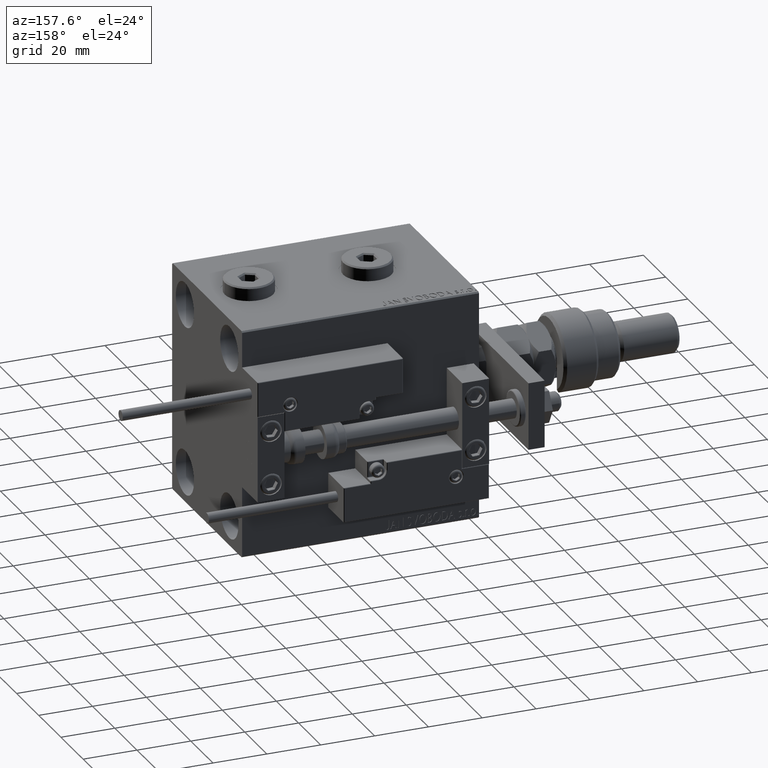
[diagram: clean part render]
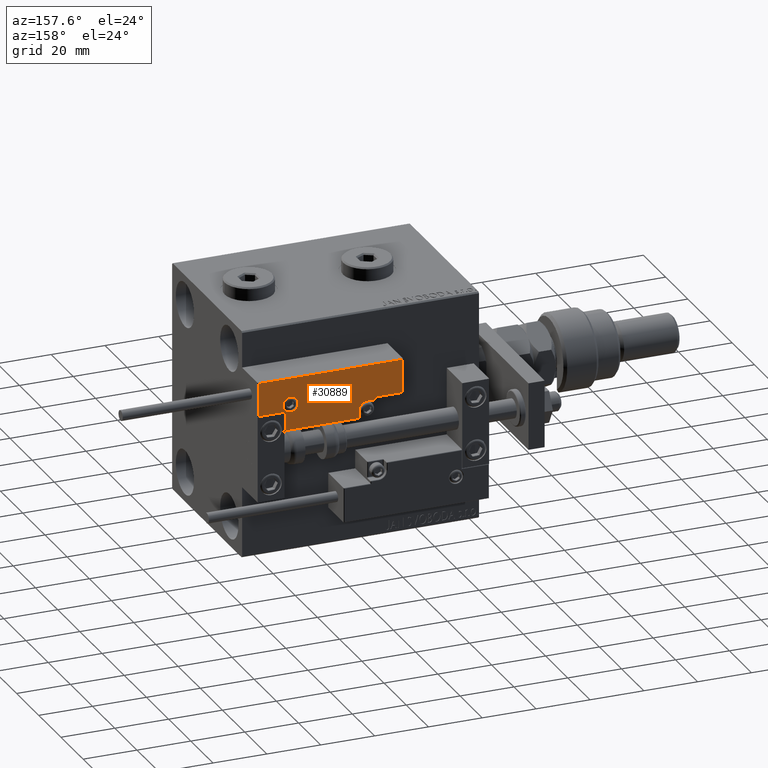
[diagram: same view with one face highlighted and labeled with its STEP entity id]
A machine part, auxiliary view. The second image highlights one B-rep face of the part: STEP entity #30889.
In plain terms, the highlighted planar face has unit normal (0, 1, -0).
Its self-contained STEP definition (entity closure, byte-faithful):
#212 = EDGE_LOOP ( 'NONE', ( #49773, #41103, #31280, #18700, #43992, #34034, #53513, #29440, #35513, #48878, #25969 ) ) ;
#790 = AXIS2_PLACEMENT_3D ( 'NONE', #13364, #30132, #46885 ) ;
#1714 = EDGE_CURVE ( 'NONE', #29962, #48337, #37411, .T. ) ;
#3985 = DIRECTION ( 'NONE',  ( -8.006416042969869188E-16, -1.000000000000000000, 0.000000000000000000 ) ) ;
#6583 = VECTOR ( 'NONE', #7527, 1000.000000000000000 ) ;
#6991 = LINE ( 'NONE', #44361, #37604 ) ;
#7221 = VERTEX_POINT ( 'NONE', #21209 ) ;
#7527 = DIRECTION ( 'NONE',  ( -0.000000000000000000, 1.000000000000000000, -0.000000000000000000 ) ) ;
#7591 = DIRECTION ( 'NONE',  ( -0.000000000000000000, 0.000000000000000000, 1.000000000000000000 ) ) ;
#7729 = LINE ( 'NONE', #30275, #32057 ) ;
#7808 = DIRECTION ( 'NONE',  ( 1.000000000000000000, -1.734723475976815230E-16, 0.000000000000000000 ) ) ;
#8039 = VECTOR ( 'NONE', #51434, 1000.000000000000000 ) ;
#9299 = DIRECTION ( 'NONE',  ( 9.912705577010318647E-16, 1.000000000000000000, 0.000000000000000000 ) ) ;
#9720 = EDGE_CURVE ( 'NONE', #35804, #29962, #17030, .T. ) ;
#10432 = ORIENTED_EDGE ( 'NONE', *, *, #29236, .T. ) ;
#11009 = EDGE_CURVE ( 'NONE', #21599, #28275, #6991, .T. ) ;
#11038 = VERTEX_POINT ( 'NONE', #11933 ) ;
#11901 = VERTEX_POINT ( 'NONE', #31835 ) ;
#11933 = CARTESIAN_POINT ( 'NONE',  ( -16.69999999999999218, 0.3000000000000032085, 14.00000000000000000 ) ) ;
#12297 = DIRECTION ( 'NONE',  ( 0.000000000000000000, -0.000000000000000000, -1.000000000000000000 ) ) ;
#12379 = CARTESIAN_POINT ( 'NONE',  ( 11.00000000000000000, 0.3000000000000032085, 14.00000000000000000 ) ) ;
#12525 = LINE ( 'NONE', #50724, #53022 ) ;
#13364 = CARTESIAN_POINT ( 'NONE',  ( -14.79999999999994920, 9.800000000000004263, 14.00000000000000000 ) ) ;
#13826 = CARTESIAN_POINT ( 'NONE',  ( -26.69999999999993534, 19.70000000000002061, 14.00000000000000000 ) ) ;
#14086 = EDGE_CURVE ( 'NONE', #15835, #21768, #26295, .T. ) ;
#15151 = VECTOR ( 'NONE', #49212, 1000.000000000000000 ) ;
#15835 = VERTEX_POINT ( 'NONE', #38617 ) ;
#17030 = LINE ( 'NONE', #33807, #48949 ) ;
#17144 = CARTESIAN_POINT ( 'NONE',  ( 26.70000000000006324, 7.300000000000007816, 14.00000000000000000 ) ) ;
#17636 = FACE_OUTER_BOUND ( 'NONE', #212, .T. ) ;
#17810 = EDGE_CURVE ( 'NONE', #28275, #11038, #26154, .T. ) ;
#18444 = LINE ( 'NONE', #51976, #39584 ) ;
#18700 = ORIENTED_EDGE ( 'NONE', *, *, #14086, .T. ) ;
#19156 = EDGE_CURVE ( 'NONE', #27764, #11901, #22853, .T. ) ;
#19475 = DIRECTION ( 'NONE',  ( 1.000000000000000000, 0.000000000000000000, 0.000000000000000000 ) ) ;
#19698 = DIRECTION ( 'NONE',  ( 1.000000000000000000, 0.000000000000000000, 0.000000000000000000 ) ) ;
#21209 = CARTESIAN_POINT ( 'NONE',  ( 16.69999999999999929, 7.300000000000009592, 14.00000000000000000 ) ) ;
#21599 = VERTEX_POINT ( 'NONE', #44143 ) ;
#21768 = VERTEX_POINT ( 'NONE', #37008 ) ;
#22016 = PLANE ( 'NONE',  #40367 ) ;
#22388 = VECTOR ( 'NONE', #9299, 1000.000000000000000 ) ;
#22853 = CIRCLE ( 'NONE', #36919, 2.800000000000000266 ) ;
#23861 = CARTESIAN_POINT ( 'NONE',  ( 13.99999999999999822, 3.000000000000002665, 14.00000000000000000 ) ) ;
#24542 = VERTEX_POINT ( 'NONE', #25494 ) ;
#25494 = CARTESIAN_POINT ( 'NONE',  ( 16.69999999999999929, 6.300000000000003375, 14.00000000000000000 ) ) ;
#25500 = CARTESIAN_POINT ( 'NONE',  ( -14.79999999999994920, 9.800000000000004263, 14.00000000000000000 ) ) ;
#25878 = DIRECTION ( 'NONE',  ( 1.000000000000000000, -1.734723475976796001E-16, 0.000000000000000000 ) ) ;
#25969 = ORIENTED_EDGE ( 'NONE', *, *, #11009, .T. ) ;
#26154 = LINE ( 'NONE', #30287, #8039 ) ;
#26295 = CIRCLE ( 'NONE', #33335, 3.299999999999997158 ) ;
#27764 = VERTEX_POINT ( 'NONE', #36370 ) ;
#28275 = VERTEX_POINT ( 'NONE', #50579 ) ;
#29236 = EDGE_CURVE ( 'NONE', #11901, #27764, #51672, .T. ) ;
#29440 = ORIENTED_EDGE ( 'NONE', *, *, #9720, .T. ) ;
#29962 = VERTEX_POINT ( 'NONE', #39233 ) ;
#29989 = DIRECTION ( 'NONE',  ( -1.000000000000000000, 6.424901762877063495E-17, -0.000000000000000000 ) ) ;
#30132 = DIRECTION ( 'NONE',  ( 0.000000000000000000, -0.000000000000000000, -1.000000000000000000 ) ) ;
#30275 = CARTESIAN_POINT ( 'NONE',  ( 27.00000000000006395, 7.300000000000007816, 14.00000000000000000 ) ) ;
#30287 = CARTESIAN_POINT ( 'NONE',  ( -16.69999999999999218, 3.252606517456513302E-15, 14.00000000000000000 ) ) ;
#30889 = ADVANCED_FACE ( 'NONE', ( #38521, #17636 ), #22016, .T. ) ;
#31280 = ORIENTED_EDGE ( 'NONE', *, *, #50170, .T. ) ;
#31835 = CARTESIAN_POINT ( 'NONE',  ( -17.59999999999994813, 9.800000000000004263, 14.00000000000000000 ) ) ;
#32057 = VECTOR ( 'NONE', #25878, 1000.000000000000000 ) ;
#33335 = AXIS2_PLACEMENT_3D ( 'NONE', #23861, #40354, #19475 ) ;
#33778 = EDGE_CURVE ( 'NONE', #21768, #24542, #18444, .T. ) ;
#33807 = CARTESIAN_POINT ( 'NONE',  ( 26.70000000000006324, 20.00000000000001776, 14.00000000000000000 ) ) ;
#34034 = ORIENTED_EDGE ( 'NONE', *, *, #48553, .T. ) ;
#35062 = CARTESIAN_POINT ( 'NONE',  ( 10.69999999999999929, 0.3000000000000032085, 14.00000000000000000 ) ) ;
#35513 = ORIENTED_EDGE ( 'NONE', *, *, #1714, .T. ) ;
#35804 = VERTEX_POINT ( 'NONE', #17144 ) ;
#36370 = CARTESIAN_POINT ( 'NONE',  ( -11.99999999999994849, 9.800000000000004263, 14.00000000000000000 ) ) ;
#36919 = AXIS2_PLACEMENT_3D ( 'NONE', #25500, #12297, #49948 ) ;
#37008 = CARTESIAN_POINT ( 'NONE',  ( 13.99999999999999822, 6.300000000000001599, 14.00000000000000000 ) ) ;
#37411 = LINE ( 'NONE', #41793, #44313 ) ;
#37604 = VECTOR ( 'NONE', #7808, 1000.000000000000000 ) ;
#38521 = FACE_BOUND ( 'NONE', #45151, .T. ) ;
#38617 = CARTESIAN_POINT ( 'NONE',  ( 10.69999999999999929, 3.000000000000003109, 14.00000000000000000 ) ) ;
#38792 = CARTESIAN_POINT ( 'NONE',  ( 0.000000000000000000, 0.000000000000000000, 14.00000000000000000 ) ) ;
#39233 = CARTESIAN_POINT ( 'NONE',  ( 26.70000000000006324, 19.70000000000001705, 14.00000000000000000 ) ) ;
#39584 = VECTOR ( 'NONE', #53875, 1000.000000000000000 ) ;
#40182 = EDGE_CURVE ( 'NONE', #11038, #52947, #45358, .T. ) ;
#40354 = DIRECTION ( 'NONE',  ( 0.000000000000000000, -0.000000000000000000, -1.000000000000000000 ) ) ;
#40367 = AXIS2_PLACEMENT_3D ( 'NONE', #38792, #7591, #19698 ) ;
#41103 = ORIENTED_EDGE ( 'NONE', *, *, #40182, .T. ) ;
#41793 = CARTESIAN_POINT ( 'NONE',  ( -26.99999999999993605, 19.70000000000002061, 14.00000000000000000 ) ) ;
#42285 = CARTESIAN_POINT ( 'NONE',  ( 16.69999999999999929, 7.000000000000009770, 14.00000000000000000 ) ) ;
#42931 = ORIENTED_EDGE ( 'NONE', *, *, #19156, .T. ) ;
#43992 = ORIENTED_EDGE ( 'NONE', *, *, #33778, .T. ) ;
#44143 = CARTESIAN_POINT ( 'NONE',  ( -26.69999999999994600, 7.300000000000005151, 14.00000000000000000 ) ) ;
#44313 = VECTOR ( 'NONE', #29989, 1000.000000000000000 ) ;
#44318 = EDGE_CURVE ( 'NONE', #48337, #21599, #12525, .T. ) ;
#44361 = CARTESIAN_POINT ( 'NONE',  ( -16.99999999999999289, 7.300000000000003375, 14.00000000000000000 ) ) ;
#45151 = EDGE_LOOP ( 'NONE', ( #42931, #10432 ) ) ;
#45358 = LINE ( 'NONE', #12379, #15151 ) ;
#45874 = DIRECTION ( 'NONE',  ( 0.000000000000000000, 1.000000000000000000, -0.000000000000000000 ) ) ;
#46079 = EDGE_CURVE ( 'NONE', #7221, #35804, #7729, .T. ) ;
#46409 = LINE ( 'NONE', #42285, #22388 ) ;
#46885 = DIRECTION ( 'NONE',  ( 1.000000000000000000, 0.000000000000000000, 0.000000000000000000 ) ) ;
#48337 = VERTEX_POINT ( 'NONE', #13826 ) ;
#48553 = EDGE_CURVE ( 'NONE', #24542, #7221, #46409, .T. ) ;
#48878 = ORIENTED_EDGE ( 'NONE', *, *, #44318, .T. ) ;
#48949 = VECTOR ( 'NONE', #45874, 1000.000000000000000 ) ;
#49035 = CARTESIAN_POINT ( 'NONE',  ( 10.69999999999999929, 3.000000000000003109, 14.00000000000000000 ) ) ;
#49212 = DIRECTION ( 'NONE',  ( 1.000000000000000000, -0.000000000000000000, 0.000000000000000000 ) ) ;
#49773 = ORIENTED_EDGE ( 'NONE', *, *, #17810, .T. ) ;
#49948 = DIRECTION ( 'NONE',  ( 1.000000000000000000, 0.000000000000000000, 0.000000000000000000 ) ) ;
#50170 = EDGE_CURVE ( 'NONE', #52947, #15835, #52894, .T. ) ;
#50579 = CARTESIAN_POINT ( 'NONE',  ( -16.69999999999999218, 7.300000000000003375, 14.00000000000000000 ) ) ;
#50724 = CARTESIAN_POINT ( 'NONE',  ( -26.69999999999994600, 7.000000000000005329, 14.00000000000000000 ) ) ;
#51434 = DIRECTION ( 'NONE',  ( 0.000000000000000000, -1.000000000000000000, 0.000000000000000000 ) ) ;
#51672 = CIRCLE ( 'NONE', #790, 2.800000000000000266 ) ;
#51976 = CARTESIAN_POINT ( 'NONE',  ( 17.00000000000000000, 6.300000000000003375, 14.00000000000000000 ) ) ;
#52894 = LINE ( 'NONE', #49035, #6583 ) ;
#52947 = VERTEX_POINT ( 'NONE', #35062 ) ;
#53022 = VECTOR ( 'NONE', #3985, 1000.000000000000000 ) ;
#53513 = ORIENTED_EDGE ( 'NONE', *, *, #46079, .T. ) ;
#53875 = DIRECTION ( 'NONE',  ( 1.000000000000000000, 5.782411586589357639E-16, -0.000000000000000000 ) ) ;